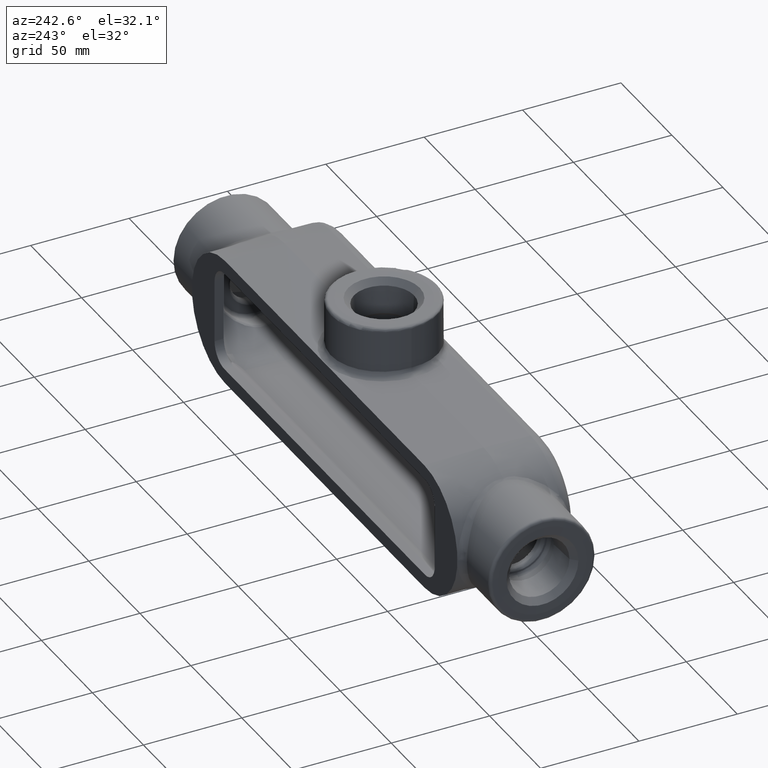
[diagram: clean part render]
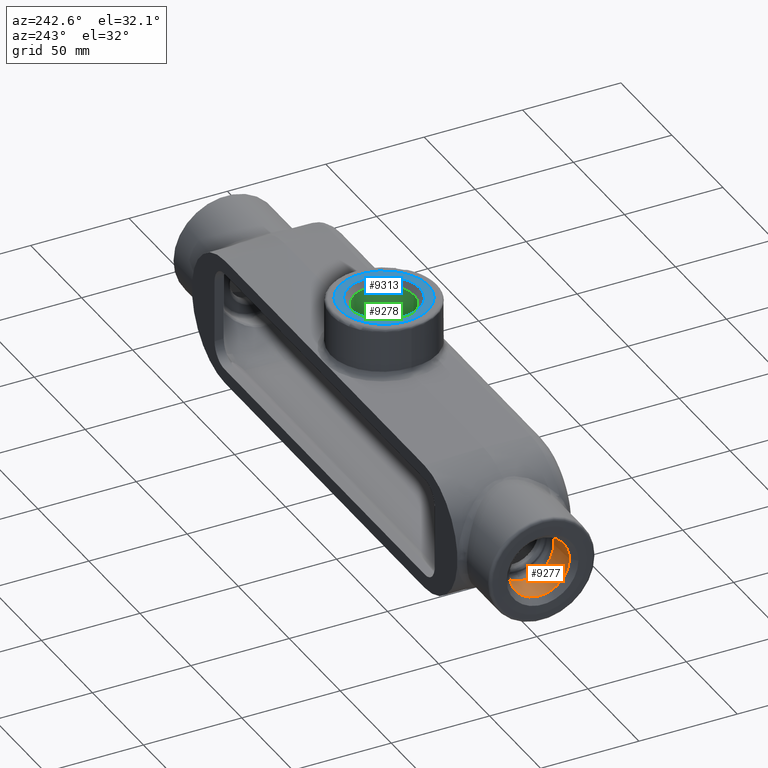
[diagram: same view with three faces highlighted in distinct colors, each labeled with its STEP entity id]
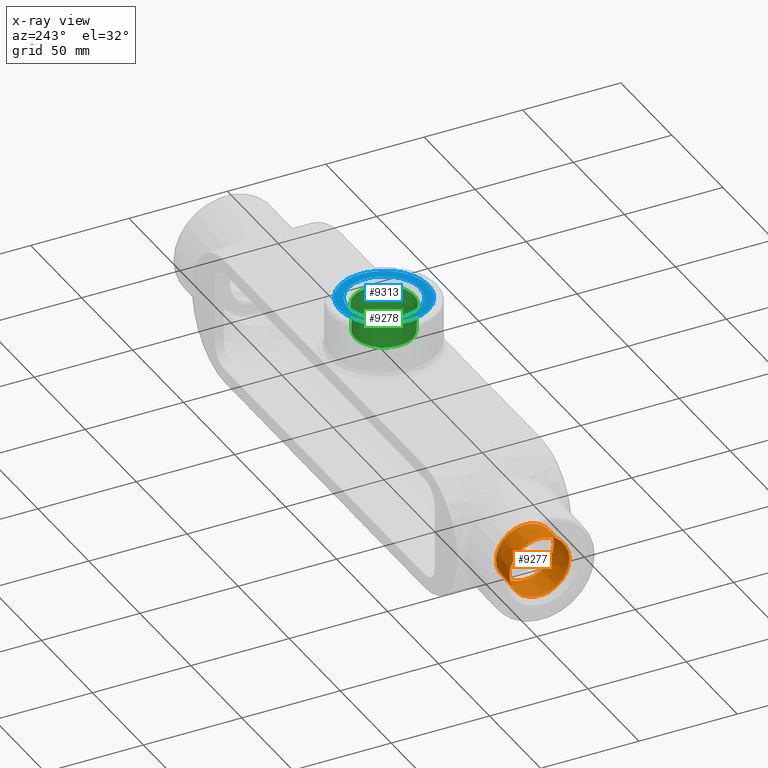
[diagram: x-ray of the same camera — body ghosted, the three highlighted faces saturated]
A machine part, auxiliary view with three faces highlighted in distinct colors.
The next image is the same camera in x-ray (body ghosted, the three faces saturated) — at least one of them is partly hidden behind the body in this view.
Their STEP definitions:

[orange] entity #9277 — the highlighted conical surface has half-angle 2.185 deg.
#1222=FACE_OUTER_BOUND('',#1761,.T.);
#1761=EDGE_LOOP('',(#7228,#7229,#7230,#7231,#7232,#7233));
#2326=LINE('',#20747,#3060);
#3060=VECTOR('',#10875,0.58975);
#3623=CIRCLE('',#9786,0.579);
#3624=CIRCLE('',#9787,0.579);
#3641=CIRCLE('',#9834,0.6005);
#3642=CIRCLE('',#9835,0.6005);
#4113=VERTEX_POINT('',#19573);
#4114=VERTEX_POINT('',#19575);
#4156=VERTEX_POINT('',#20746);
#4157=VERTEX_POINT('',#20748);
#5205=EDGE_CURVE('',#4113,#4114,#3623,.T.);
#5206=EDGE_CURVE('',#4114,#4113,#3624,.T.);
#5284=EDGE_CURVE('',#4113,#4156,#2326,.T.);
#5285=EDGE_CURVE('',#4156,#4157,#3641,.T.);
#5286=EDGE_CURVE('',#4157,#4156,#3642,.T.);
#7228=ORIENTED_EDGE('',*,*,#5206,.F.);
#7229=ORIENTED_EDGE('',*,*,#5205,.F.);
#7230=ORIENTED_EDGE('',*,*,#5284,.T.);
#7231=ORIENTED_EDGE('',*,*,#5285,.T.);
#7232=ORIENTED_EDGE('',*,*,#5286,.T.);
#7233=ORIENTED_EDGE('',*,*,#5284,.F.);
#9025=CONICAL_SURFACE('',#9833,0.58975,0.0381351441696411);
#9277=ADVANCED_FACE('',(#1222),#9025,.F.);
#9786=AXIS2_PLACEMENT_3D('',#19576,#10770,#10771);
#9787=AXIS2_PLACEMENT_3D('',#19577,#10772,#10773);
#9833=AXIS2_PLACEMENT_3D('',#20745,#10873,#10874);
#9834=AXIS2_PLACEMENT_3D('',#20749,#10876,#10877);
#9835=AXIS2_PLACEMENT_3D('',#20750,#10878,#10879);
#10770=DIRECTION('center_axis',(-1.,0.,0.));
#10771=DIRECTION('ref_axis',(0.,0.,1.));
#10772=DIRECTION('center_axis',(-1.,0.,0.));
#10773=DIRECTION('ref_axis',(0.,0.,1.));
#10873=DIRECTION('center_axis',(-1.,0.,0.));
#10874=DIRECTION('ref_axis',(0.,1.,0.));
#10875=DIRECTION('',(-0.999272943508523,-0.0381259015868859,4.66907633429868E-18));
#10876=DIRECTION('center_axis',(-1.,0.,0.));
#10877=DIRECTION('ref_axis',(0.,0.,1.));
#10878=DIRECTION('center_axis',(-1.,0.,0.));
#10879=DIRECTION('ref_axis',(0.,0.,1.));
#19573=CARTESIAN_POINT('',(-5.437,-0.579,7.09070496706317E-17));
#19575=CARTESIAN_POINT('',(-5.437,0.579,0.));
#19576=CARTESIAN_POINT('Origin',(-5.437,0.,0.));
#19577=CARTESIAN_POINT('Origin',(-5.437,0.,0.));
#20745=CARTESIAN_POINT('Origin',(-5.71875554401608,0.,0.));
#20746=CARTESIAN_POINT('',(-6.00051108803217,-0.6005,7.35400402887986E-17));
#20747=CARTESIAN_POINT('',(-5.71875554401608,-0.58975,7.22235449797152E-17));
#20748=CARTESIAN_POINT('',(-6.00051108803217,0.6005,0.));
#20749=CARTESIAN_POINT('Origin',(-6.00051108803217,0.,0.));
#20750=CARTESIAN_POINT('Origin',(-6.00051108803217,0.,0.));

[blue] entity #9313 — the highlighted conical surface has half-angle 88 deg.
#1258=FACE_OUTER_BOUND('',#1797,.T.);
#1797=EDGE_LOOP('',(#7438,#7439,#7440,#7441,#7442,#7443));
#2350=LINE('',#21557,#3084);
#3084=VECTOR('',#11031,0.80475);
#3657=CIRCLE('',#9863,0.719);
#3658=CIRCLE('',#9864,0.719);
#3675=CIRCLE('',#9900,0.890499999999995);
#3676=CIRCLE('',#9901,0.890499999999995);
#4184=VERTEX_POINT('',#21410);
#4185=VERTEX_POINT('',#21412);
#4210=VERTEX_POINT('',#21556);
#4211=VERTEX_POINT('',#21558);
#5335=EDGE_CURVE('',#4184,#4185,#3657,.T.);
#5336=EDGE_CURVE('',#4185,#4184,#3658,.T.);
#5375=EDGE_CURVE('',#4184,#4210,#2350,.T.);
#5376=EDGE_CURVE('',#4211,#4210,#3675,.T.);
#5377=EDGE_CURVE('',#4210,#4211,#3676,.T.);
#7438=ORIENTED_EDGE('',*,*,#5336,.F.);
#7439=ORIENTED_EDGE('',*,*,#5335,.F.);
#7440=ORIENTED_EDGE('',*,*,#5375,.T.);
#7441=ORIENTED_EDGE('',*,*,#5376,.F.);
#7442=ORIENTED_EDGE('',*,*,#5377,.F.);
#7443=ORIENTED_EDGE('',*,*,#5375,.F.);
#9040=CONICAL_SURFACE('',#9899,0.80475,1.53588974175501);
#9313=ADVANCED_FACE('',(#1258),#9040,.F.);
#9863=AXIS2_PLACEMENT_3D('',#21413,#10947,#10948);
#9864=AXIS2_PLACEMENT_3D('',#21414,#10949,#10950);
#9899=AXIS2_PLACEMENT_3D('',#21555,#11029,#11030);
#9900=AXIS2_PLACEMENT_3D('',#21559,#11032,#11033);
#9901=AXIS2_PLACEMENT_3D('',#21560,#11034,#11035);
#10947=DIRECTION('center_axis',(0.,0.,1.));
#10948=DIRECTION('ref_axis',(1.,0.,0.));
#10949=DIRECTION('center_axis',(0.,0.,1.));
#10950=DIRECTION('ref_axis',(1.,0.,0.));
#11029=DIRECTION('center_axis',(0.,0.,1.));
#11030=DIRECTION('ref_axis',(0.,1.,0.));
#11031=DIRECTION('',(1.22390077740616E-16,-0.999390827019096,0.0348994967025));
#11032=DIRECTION('center_axis',(0.,0.,-1.));
#11033=DIRECTION('ref_axis',(0.,1.,0.));
#11034=DIRECTION('center_axis',(0.,0.,-1.));
#11035=DIRECTION('ref_axis',(0.,1.,0.));
#21410=CARTESIAN_POINT('',(8.80521048586947E-17,-0.719,2.30651108803217));
#21412=CARTESIAN_POINT('',(0.,0.719,2.30651108803217));
#21413=CARTESIAN_POINT('Origin',(0.,0.,2.30651108803217));
#21414=CARTESIAN_POINT('Origin',(0.,0.,2.30651108803217));
#21555=CARTESIAN_POINT('Origin',(0.,0.,2.30950554401608));
#21556=CARTESIAN_POINT('',(1.09054797464071E-16,-0.890499999999995,2.3125));
#21557=CARTESIAN_POINT('',(9.85534511613832E-17,-0.80475,2.30950554401608));
#21558=CARTESIAN_POINT('',(0.,0.8905,2.3125));
#21559=CARTESIAN_POINT('Origin',(0.,0.,2.3125));
#21560=CARTESIAN_POINT('Origin',(0.,0.,2.3125));

[green] entity #9278 — the highlighted conical surface has half-angle 2.185 deg.
#1223=FACE_OUTER_BOUND('',#1762,.T.);
#1762=EDGE_LOOP('',(#7234,#7235,#7236,#7237,#7238,#7239));
#2327=LINE('',#20753,#3061);
#3061=VECTOR('',#10882,0.58975);
#3625=CIRCLE('',#9789,0.579);
#3626=CIRCLE('',#9790,0.579);
#3643=CIRCLE('',#9837,0.6005);
#3644=CIRCLE('',#9838,0.6005);
#4115=VERTEX_POINT('',#19579);
#4116=VERTEX_POINT('',#19581);
#4158=VERTEX_POINT('',#20752);
#4159=VERTEX_POINT('',#20754);
#5208=EDGE_CURVE('',#4115,#4116,#3625,.T.);
#5209=EDGE_CURVE('',#4116,#4115,#3626,.T.);
#5287=EDGE_CURVE('',#4115,#4158,#2327,.T.);
#5288=EDGE_CURVE('',#4158,#4159,#3643,.T.);
#5289=EDGE_CURVE('',#4159,#4158,#3644,.T.);
#7234=ORIENTED_EDGE('',*,*,#5209,.F.);
#7235=ORIENTED_EDGE('',*,*,#5208,.F.);
#7236=ORIENTED_EDGE('',*,*,#5287,.T.);
#7237=ORIENTED_EDGE('',*,*,#5288,.T.);
#7238=ORIENTED_EDGE('',*,*,#5289,.T.);
#7239=ORIENTED_EDGE('',*,*,#5287,.F.);
#9026=CONICAL_SURFACE('',#9836,0.58975,0.0381351441696411);
#9278=ADVANCED_FACE('',(#1223),#9026,.F.);
#9789=AXIS2_PLACEMENT_3D('',#19582,#10777,#10778);
#9790=AXIS2_PLACEMENT_3D('',#19583,#10779,#10780);
#9836=AXIS2_PLACEMENT_3D('',#20751,#10880,#10881);
#9837=AXIS2_PLACEMENT_3D('',#20755,#10883,#10884);
#9838=AXIS2_PLACEMENT_3D('',#20756,#10885,#10886);
#10777=DIRECTION('center_axis',(0.,0.,1.));
#10778=DIRECTION('ref_axis',(1.,0.,0.));
#10779=DIRECTION('center_axis',(0.,0.,1.));
#10780=DIRECTION('ref_axis',(1.,0.,0.));
#10880=DIRECTION('center_axis',(0.,0.,1.));
#10881=DIRECTION('ref_axis',(0.,1.,0.));
#10882=DIRECTION('',(4.66907633429869E-18,-0.038125901586886,0.999272943508523));
#10883=DIRECTION('center_axis',(0.,0.,1.));
#10884=DIRECTION('ref_axis',(1.,0.,0.));
#10885=DIRECTION('center_axis',(0.,0.,1.));
#10886=DIRECTION('ref_axis',(1.,0.,0.));
#19579=CARTESIAN_POINT('',(7.09070496706318E-17,-0.579,1.6245));
#19581=CARTESIAN_POINT('',(0.,0.579,1.6245));
#19582=CARTESIAN_POINT('Origin',(0.,0.,1.6245));
#19583=CARTESIAN_POINT('Origin',(0.,0.,1.6245));
#20751=CARTESIAN_POINT('Origin',(0.,0.,1.90625554401608));
#20752=CARTESIAN_POINT('',(7.35400402887986E-17,-0.6005,2.18801108803216));
#20753=CARTESIAN_POINT('',(7.22235449797152E-17,-0.58975,1.90625554401608));
#20754=CARTESIAN_POINT('',(0.,0.6005,2.18801108803216));
#20755=CARTESIAN_POINT('Origin',(0.,0.,2.18801108803216));
#20756=CARTESIAN_POINT('Origin',(0.,0.,2.18801108803216));